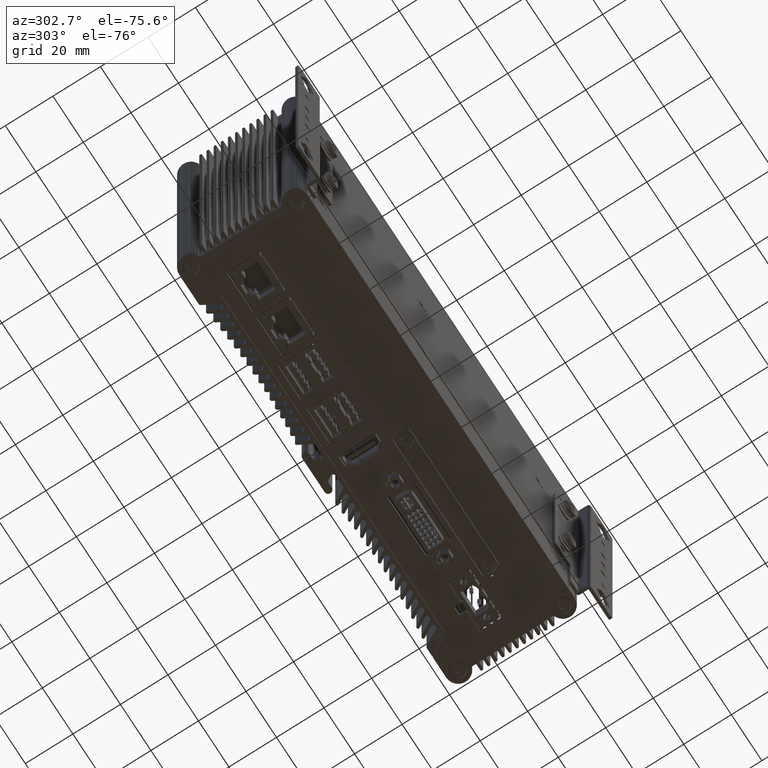
[diagram: clean part render]
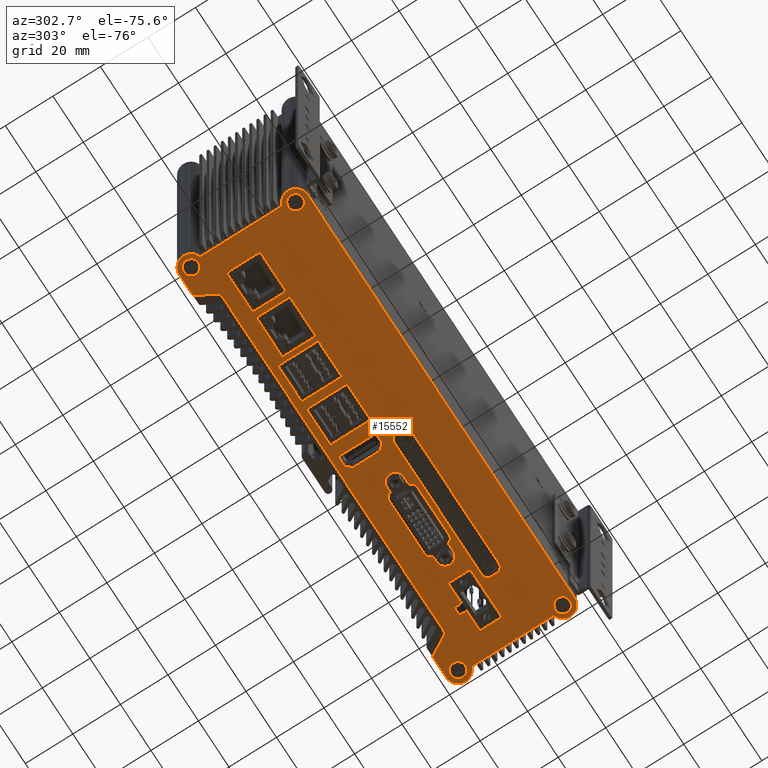
[diagram: same view with one face highlighted and labeled with its STEP entity id]
A machine part, auxiliary view. The second image highlights one B-rep face of the part: STEP entity #15552.
In plain terms, the highlighted planar face has unit normal (-0, 0, -1).
Its self-contained STEP definition (entity closure, byte-faithful):
#994 = CARTESIAN_POINT ( 'NONE',  ( -12.21617989435555500, 7.383629856380656200, -130.9999999999813600 ) ) ;
#1002 = LINE ( 'NONE', #994, #65418 ) ;
#1027 = DIRECTION ( 'NONE',  ( 0.9999999999999998900, 1.605435112628228500E-008, 0.0000000000000000000 ) ) ;
#1133 = LINE ( 'NONE', #1135, #65439 ) ;
#1135 = CARTESIAN_POINT ( 'NONE',  ( -33.56617961822070100, -9.816370486379757000, -130.9999999999813600 ) ) ;
#1137 = DIRECTION ( 'NONE',  ( -0.9999999999999998900, -1.605435112628228500E-008, 0.0000000000000000000 ) ) ;
#1176 = LINE ( 'NONE', #1179, #65448 ) ;
#1179 = CARTESIAN_POINT ( 'NONE',  ( 6.583820105644414300, 7.383630158202432600, -130.9999999999813600 ) ) ;
#1180 = DIRECTION ( 'NONE',  ( 0.9999999999999998900, 1.605435112628228500E-008, 0.0000000000000000000 ) ) ;
#1675 = LINE ( 'NONE', #1678, #65455 ) ;
#1678 = CARTESIAN_POINT ( 'NONE',  ( 6.583820378568389300, -9.616369841797610000, -130.9999999999813600 ) ) ;
#1680 = DIRECTION ( 'NONE',  ( -1.605435112628228500E-008, 0.9999999999999998900, 0.0000000000000000000 ) ) ;
#1687 = LINE ( 'NONE', #1690, #65457 ) ;
#1690 = CARTESIAN_POINT ( 'NONE',  ( 22.18382037856839200, -9.616369591349732500, -130.9999999999813600 ) ) ;
#1692 = DIRECTION ( 'NONE',  ( -0.9999999999999998900, -1.605435112628228500E-008, 0.0000000000000000000 ) ) ;
#7812 = VECTOR ( 'NONE', #42170, 1000.000000000000000 ) ;
#7837 = CIRCLE ( 'NONE', #7844, 2.500000000000002700 ) ;
#7844 = AXIS2_PLACEMENT_3D ( 'NONE', #42223, #42224, #42225 ) ;
#7856 = CIRCLE ( 'NONE', #7862, 2.500000000000002700 ) ;
#7862 = AXIS2_PLACEMENT_3D ( 'NONE', #42262, #42263, #42264 ) ;
#7877 = VECTOR ( 'NONE', #42301, 1000.000000000000000 ) ;
#7878 = VECTOR ( 'NONE', #42308, 1000.000000000000000 ) ;
#7882 = VECTOR ( 'NONE', #42313, 1000.000000000000000 ) ;
#7886 = CIRCLE ( 'NONE', #7890, 2.499999999999999100 ) ;
#7888 = VECTOR ( 'NONE', #42328, 1000.000000000000000 ) ;
#7890 = AXIS2_PLACEMENT_3D ( 'NONE', #42322, #42323, #42324 ) ;
#7892 = VECTOR ( 'NONE', #42334, 1000.000000000000000 ) ;
#7896 = VECTOR ( 'NONE', #42341, 1000.000000000000000 ) ;
#7901 = VECTOR ( 'NONE', #42346, 1000.000000000000000 ) ;
#7903 = VECTOR ( 'NONE', #42353, 1000.000000000000000 ) ;
#7905 = VECTOR ( 'NONE', #42359, 1000.000000000000000 ) ;
#7908 = VECTOR ( 'NONE', #42364, 1000.000000000000000 ) ;
#7912 = VECTOR ( 'NONE', #42375, 1000.000000000000000 ) ;
#7914 = VECTOR ( 'NONE', #42385, 1000.000000000000000 ) ;
#7915 = VECTOR ( 'NONE', #42380, 1000.000000000000000 ) ;
#7921 = CIRCLE ( 'NONE', #7924, 0.3000000000000017100 ) ;
#7923 = VECTOR ( 'NONE', #42404, 1000.000000000000100 ) ;
#7924 = AXIS2_PLACEMENT_3D ( 'NONE', #42390, #42391, #42392 ) ;
#7925 = VECTOR ( 'NONE', #42397, 1000.000000000000000 ) ;
#7929 = CIRCLE ( 'NONE', #7938, 0.2999999999999947700 ) ;
#7932 = CIRCLE ( 'NONE', #7934, 0.2999999999999947700 ) ;
#7934 = AXIS2_PLACEMENT_3D ( 'NONE', #42409, #42410, #42411 ) ;
#7936 = CIRCLE ( 'NONE', #7944, 0.3000000000000086500 ) ;
#7938 = AXIS2_PLACEMENT_3D ( 'NONE', #42415, #42416, #42417 ) ;
#7944 = AXIS2_PLACEMENT_3D ( 'NONE', #42423, #42424, #42425 ) ;
#7948 = CIRCLE ( 'NONE', #7950, 0.3000000000000676000 ) ;
#7950 = AXIS2_PLACEMENT_3D ( 'NONE', #42434, #42435, #42436 ) ;
#8830 = VERTEX_POINT ( 'NONE', #72541 ) ;
#8839 = VERTEX_POINT ( 'NONE', #72547 ) ;
#8843 = VERTEX_POINT ( 'NONE', #72551 ) ;
#8910 = VERTEX_POINT ( 'NONE', #72610 ) ;
#9047 = VERTEX_POINT ( 'NONE', #72729 ) ;
#9074 = VERTEX_POINT ( 'NONE', #72754 ) ;
#9162 = VERTEX_POINT ( 'NONE', #72810 ) ;
#9183 = VERTEX_POINT ( 'NONE', #72821 ) ;
#9195 = VERTEX_POINT ( 'NONE', #72829 ) ;
#9199 = VERTEX_POINT ( 'NONE', #72831 ) ;
#9218 = VERTEX_POINT ( 'NONE', #72841 ) ;
#9245 = VERTEX_POINT ( 'NONE', #72853 ) ;
#9249 = VERTEX_POINT ( 'NONE', #72855 ) ;
#9252 = VERTEX_POINT ( 'NONE', #72857 ) ;
#9298 = VERTEX_POINT ( 'NONE', #72883 ) ;
#9351 = VERTEX_POINT ( 'NONE', #72911 ) ;
#9423 = VERTEX_POINT ( 'NONE', #72952 ) ;
#9473 = VERTEX_POINT ( 'NONE', #72981 ) ;
#9519 = VERTEX_POINT ( 'NONE', #73004 ) ;
#9675 = VERTEX_POINT ( 'NONE', #73084 ) ;
#9735 = VERTEX_POINT ( 'NONE', #73112 ) ;
#9766 = VERTEX_POINT ( 'NONE', #73124 ) ;
#9832 = VERTEX_POINT ( 'NONE', #73157 ) ;
#9846 = VERTEX_POINT ( 'NONE', #73164 ) ;
#9887 = VERTEX_POINT ( 'NONE', #73185 ) ;
#9907 = VERTEX_POINT ( 'NONE', #73195 ) ;
#10031 = VERTEX_POINT ( 'NONE', #73256 ) ;
#10034 = VERTEX_POINT ( 'NONE', #73257 ) ;
#10039 = VERTEX_POINT ( 'NONE', #73260 ) ;
#10111 = VERTEX_POINT ( 'NONE', #73299 ) ;
#10113 = VERTEX_POINT ( 'NONE', #73300 ) ;
#10137 = VERTEX_POINT ( 'NONE', #73312 ) ;
#10206 = VERTEX_POINT ( 'NONE', #73342 ) ;
#10212 = VERTEX_POINT ( 'NONE', #73346 ) ;
#10348 = VERTEX_POINT ( 'NONE', #73412 ) ;
#10372 = VERTEX_POINT ( 'NONE', #73426 ) ;
#10379 = VERTEX_POINT ( 'NONE', #73430 ) ;
#10402 = VERTEX_POINT ( 'NONE', #73442 ) ;
#10580 = VERTEX_POINT ( 'NONE', #73508 ) ;
#10625 = VERTEX_POINT ( 'NONE', #73520 ) ;
#10631 = VERTEX_POINT ( 'NONE', #73518 ) ;
#10776 = VERTEX_POINT ( 'NONE', #33456 ) ;
#10879 = VERTEX_POINT ( 'NONE', #33476 ) ;
#10939 = VERTEX_POINT ( 'NONE', #33492 ) ;
#10965 = VERTEX_POINT ( 'NONE', #33499 ) ;
#11015 = VERTEX_POINT ( 'NONE', #33513 ) ;
#11046 = VERTEX_POINT ( 'NONE', #33522 ) ;
#11073 = VERTEX_POINT ( 'NONE', #33529 ) ;
#14451 = ORIENTED_EDGE ( 'NONE', *, *, #32662, .F. ) ;
#14458 = ORIENTED_EDGE ( 'NONE', *, *, #32617, .T. ) ;
#14461 = ORIENTED_EDGE ( 'NONE', *, *, #50144, .F. ) ;
#14479 = ORIENTED_EDGE ( 'NONE', *, *, #32636, .T. ) ;
#14505 = ORIENTED_EDGE ( 'NONE', *, *, #32673, .F. ) ;
#14511 = ORIENTED_EDGE ( 'NONE', *, *, #32620, .T. ) ;
#14520 = ORIENTED_EDGE ( 'NONE', *, *, #32604, .T. ) ;
#14524 = ORIENTED_EDGE ( 'NONE', *, *, #32625, .T. ) ;
#14533 = ORIENTED_EDGE ( 'NONE', *, *, #32713, .F. ) ;
#14559 = ORIENTED_EDGE ( 'NONE', *, *, #50140, .F. ) ;
#14566 = ORIENTED_EDGE ( 'NONE', *, *, #32706, .F. ) ;
#14572 = ORIENTED_EDGE ( 'NONE', *, *, #32719, .F. ) ;
#14579 = ORIENTED_EDGE ( 'NONE', *, *, #95932, .F. ) ;
#14583 = ORIENTED_EDGE ( 'NONE', *, *, #95895, .F. ) ;
#14590 = ORIENTED_EDGE ( 'NONE', *, *, #95913, .F. ) ;
#14601 = ORIENTED_EDGE ( 'NONE', *, *, #50091, .F. ) ;
#14604 = ORIENTED_EDGE ( 'NONE', *, *, #50434, .F. ) ;
#14610 = ORIENTED_EDGE ( 'NONE', *, *, #50118, .F. ) ;
#14613 = ORIENTED_EDGE ( 'NONE', *, *, #32639, .T. ) ;
#14616 = ORIENTED_EDGE ( 'NONE', *, *, #33002, .T. ) ;
#14618 = ORIENTED_EDGE ( 'NONE', *, *, #50444, .F. ) ;
#14621 = ORIENTED_EDGE ( 'NONE', *, *, #32568, .F. ) ;
#14695 = ORIENTED_EDGE ( 'NONE', *, *, #32624, .T. ) ;
#14702 = ORIENTED_EDGE ( 'NONE', *, *, #32610, .T. ) ;
#14707 = ORIENTED_EDGE ( 'NONE', *, *, #32606, .T. ) ;
#14716 = ORIENTED_EDGE ( 'NONE', *, *, #32996, .T. ) ;
#14718 = ORIENTED_EDGE ( 'NONE', *, *, #32648, .F. ) ;
#14720 = ORIENTED_EDGE ( 'NONE', *, *, #32652, .F. ) ;
#14734 = ORIENTED_EDGE ( 'NONE', *, *, #32630, .T. ) ;
#14741 = ORIENTED_EDGE ( 'NONE', *, *, #50150, .F. ) ;
#14768 = ORIENTED_EDGE ( 'NONE', *, *, #50154, .F. ) ;
#14790 = ORIENTED_EDGE ( 'NONE', *, *, #32595, .T. ) ;
#14805 = ORIENTED_EDGE ( 'NONE', *, *, #32633, .T. ) ;
#14858 = ORIENTED_EDGE ( 'NONE', *, *, #32696, .F. ) ;
#14880 = ORIENTED_EDGE ( 'NONE', *, *, #32689, .F. ) ;
#14916 = ORIENTED_EDGE ( 'NONE', *, *, #32994, .T. ) ;
#14917 = ORIENTED_EDGE ( 'NONE', *, *, #32725, .F. ) ;
#14925 = ORIENTED_EDGE ( 'NONE', *, *, #50125, .F. ) ;
#14936 = ORIENTED_EDGE ( 'NONE', *, *, #32642, .T. ) ;
#14939 = ORIENTED_EDGE ( 'NONE', *, *, #32998, .T. ) ;
#14982 = ORIENTED_EDGE ( 'NONE', *, *, #50157, .F. ) ;
#14988 = ORIENTED_EDGE ( 'NONE', *, *, #50148, .F. ) ;
#14993 = ORIENTED_EDGE ( 'NONE', *, *, #32670, .F. ) ;
#14994 = ORIENTED_EDGE ( 'NONE', *, *, #32586, .F. ) ;
#14995 = ORIENTED_EDGE ( 'NONE', *, *, #50161, .F. ) ;
#15000 = ORIENTED_EDGE ( 'NONE', *, *, #50146, .F. ) ;
#15001 = ORIENTED_EDGE ( 'NONE', *, *, #32686, .F. ) ;
#15002 = ORIENTED_EDGE ( 'NONE', *, *, #50152, .F. ) ;
#15005 = ORIENTED_EDGE ( 'NONE', *, *, #50137, .F. ) ;
#15006 = ORIENTED_EDGE ( 'NONE', *, *, #50133, .F. ) ;
#15007 = ORIENTED_EDGE ( 'NONE', *, *, #32716, .F. ) ;
#15008 = ORIENTED_EDGE ( 'NONE', *, *, #32676, .F. ) ;
#15009 = ORIENTED_EDGE ( 'NONE', *, *, #32722, .F. ) ;
#15016 = ORIENTED_EDGE ( 'NONE', *, *, #32682, .F. ) ;
#15017 = ORIENTED_EDGE ( 'NONE', *, *, #95934, .F. ) ;
#15020 = ORIENTED_EDGE ( 'NONE', *, *, #50120, .F. ) ;
#15022 = ORIENTED_EDGE ( 'NONE', *, *, #50135, .F. ) ;
#15025 = ORIENTED_EDGE ( 'NONE', *, *, #50129, .F. ) ;
#15027 = ORIENTED_EDGE ( 'NONE', *, *, #95920, .F. ) ;
#15029 = ORIENTED_EDGE ( 'NONE', *, *, #50123, .F. ) ;
#15030 = ORIENTED_EDGE ( 'NONE', *, *, #50131, .F. ) ;
#15032 = ORIENTED_EDGE ( 'NONE', *, *, #50450, .F. ) ;
#15034 = ORIENTED_EDGE ( 'NONE', *, *, #50116, .F. ) ;
#15035 = ORIENTED_EDGE ( 'NONE', *, *, #50449, .F. ) ;
#15037 = ORIENTED_EDGE ( 'NONE', *, *, #50446, .F. ) ;
#15038 = ORIENTED_EDGE ( 'NONE', *, *, #50072, .F. ) ;
#15039 = ORIENTED_EDGE ( 'NONE', *, *, #50103, .F. ) ;
#15040 = ORIENTED_EDGE ( 'NONE', *, *, #32562, .F. ) ;
#15042 = ORIENTED_EDGE ( 'NONE', *, *, #32558, .F. ) ;
#15043 = ORIENTED_EDGE ( 'NONE', *, *, #50448, .F. ) ;
#15044 = ORIENTED_EDGE ( 'NONE', *, *, #50433, .F. ) ;
#15047 = ORIENTED_EDGE ( 'NONE', *, *, #50432, .F. ) ;
#15048 = ORIENTED_EDGE ( 'NONE', *, *, #32578, .F. ) ;
#15051 = ORIENTED_EDGE ( 'NONE', *, *, #50127, .F. ) ;
#15055 = ORIENTED_EDGE ( 'NONE', *, *, #32658, .F. ) ;
#15056 = ORIENTED_EDGE ( 'NONE', *, *, #50142, .F. ) ;
#15071 = ORIENTED_EDGE ( 'NONE', *, *, #32629, .T. ) ;
#15088 = ORIENTED_EDGE ( 'NONE', *, *, #32644, .F. ) ;
#15107 = ORIENTED_EDGE ( 'NONE', *, *, #32710, .F. ) ;
#15108 = ORIENTED_EDGE ( 'NONE', *, *, #32666, .F. ) ;
#15109 = ORIENTED_EDGE ( 'NONE', *, *, #32681, .F. ) ;
#15117 = ORIENTED_EDGE ( 'NONE', *, *, #32692, .F. ) ;
#15118 = ORIENTED_EDGE ( 'NONE', *, *, #32703, .F. ) ;
#15135 = ORIENTED_EDGE ( 'NONE', *, *, #32700, .F. ) ;
#15171 = ORIENTED_EDGE ( 'NONE', *, *, #32655, .F. ) ;
#15552 = ADVANCED_FACE ( 'NONE', ( #57868, #57870, #57872, #57874, #57867, #57869, #57871, #57873, #57875, #57860, #57876, #57877, #57878 ), #57882, .T. ) ;
#21199 = VECTOR ( 'NONE', #95423, 1000.000000000000000 ) ;
#21200 = VECTOR ( 'NONE', #95420, 1000.000000000000000 ) ;
#21201 = CIRCLE ( 'NONE', #21204, 2.499999999999999100 ) ;
#21204 = AXIS2_PLACEMENT_3D ( 'NONE', #95426, #95427, #95428 ) ;
#21205 = CIRCLE ( 'NONE', #21228, 3.150000000000000400 ) ;
#21214 = CIRCLE ( 'NONE', #21217, 3.150000000000000400 ) ;
#21217 = AXIS2_PLACEMENT_3D ( 'NONE', #95453, #95454, #95455 ) ;
#21218 = CIRCLE ( 'NONE', #21221, 3.149999999999986600 ) ;
#21221 = AXIS2_PLACEMENT_3D ( 'NONE', #95459, #95460, #95461 ) ;
#21222 = CIRCLE ( 'NONE', #21225, 3.149999999999986600 ) ;
#21224 = VECTOR ( 'NONE', #95472, 1000.000000000000000 ) ;
#21225 = AXIS2_PLACEMENT_3D ( 'NONE', #95468, #95469, #95470 ) ;
#21228 = AXIS2_PLACEMENT_3D ( 'NONE', #95474, #95475, #95476 ) ;
#28693 = LINE ( 'NONE', #28696, #66874 ) ;
#28696 = CARTESIAN_POINT ( 'NONE',  ( 107.1838198958251100, 18.78363122987018100, -130.9999999999813600 ) ) ;
#28698 = DIRECTION ( 'NONE',  ( 0.9999999999999998900, 1.605435112628228500E-008, 0.0000000000000000000 ) ) ;
#28708 = LINE ( 'NONE', #28711, #66879 ) ;
#28711 = CARTESIAN_POINT ( 'NONE',  ( 117.3838200329712000, 9.013935349224560400, -130.9999999999813600 ) ) ;
#28713 = CARTESIAN_POINT ( 'NONE',  ( 115.8838196477010300, 13.78363130392962300, -130.9999999999813600 ) ) ;
#28715 = DIRECTION ( 'NONE',  ( 0.0000000000000000000, 0.0000000000000000000, -1.000000000000000000 ) ) ;
#28717 = DIRECTION ( 'NONE',  ( -0.9999999999999997800, -1.605435104050521000E-008, 0.0000000000000000000 ) ) ;
#28730 = DIRECTION ( 'NONE',  ( 1.605435112628228500E-008, -0.9999999999999998900, 0.0000000000000000000 ) ) ;
#28753 = LINE ( 'NONE', #28756, #66884 ) ;
#28756 = CARTESIAN_POINT ( 'NONE',  ( -44.06532700663179000, 10.28362880167331500, -130.9999999999813600 ) ) ;
#28758 = DIRECTION ( 'NONE',  ( 0.9999999999999998900, 1.605435701651001600E-008, 0.0000000000000000000 ) ) ;
#31801 = AXIS2_PLACEMENT_3D ( 'NONE', #57880, #57883, #57884 ) ;
#32558 = EDGE_CURVE ( 'NONE', #38203, #37855, #66337, .T. ) ;
#32562 = EDGE_CURVE ( 'NONE', #37094, #37977, #66338, .T. ) ;
#32568 = EDGE_CURVE ( 'NONE', #37199, #36741, #66347, .T. ) ;
#32578 = EDGE_CURVE ( 'NONE', #37042, #36617, #66353, .T. ) ;
#32586 = EDGE_CURVE ( 'NONE', #37431, #37394, #66359, .T. ) ;
#32595 = EDGE_CURVE ( 'NONE', #37362, #37358, #66365, .T. ) ;
#32604 = EDGE_CURVE ( 'NONE', #38228, #37346, #66371, .T. ) ;
#32606 = EDGE_CURVE ( 'NONE', #37348, #36693, #37611, .T. ) ;
#32610 = EDGE_CURVE ( 'NONE', #36693, #36690, #66369, .T. ) ;
#32617 = EDGE_CURVE ( 'NONE', #37556, #10402, #66381, .T. ) ;
#32620 = EDGE_CURVE ( 'NONE', #10402, #38228, #37748, .T. ) ;
#32624 = EDGE_CURVE ( 'NONE', #37346, #10212, #66392, .T. ) ;
#32625 = EDGE_CURVE ( 'NONE', #10212, #37362, #37769, .T. ) ;
#32629 = EDGE_CURVE ( 'NONE', #37358, #10113, #66399, .T. ) ;
#32630 = EDGE_CURVE ( 'NONE', #10113, #10137, #37822, .T. ) ;
#32633 = EDGE_CURVE ( 'NONE', #10137, #37710, #66404, .T. ) ;
#32636 = EDGE_CURVE ( 'NONE', #37710, #36619, #37917, .T. ) ;
#32639 = EDGE_CURVE ( 'NONE', #36619, #10372, #66412, .T. ) ;
#32642 = EDGE_CURVE ( 'NONE', #9473, #37348, #66415, .T. ) ;
#32644 = EDGE_CURVE ( 'NONE', #10939, #9766, #37994, .T. ) ;
#32648 = EDGE_CURVE ( 'NONE', #10034, #9675, #38037, .T. ) ;
#32652 = EDGE_CURVE ( 'NONE', #9675, #10348, #66429, .T. ) ;
#32655 = EDGE_CURVE ( 'NONE', #10348, #10965, #38091, .T. ) ;
#32658 = EDGE_CURVE ( 'NONE', #10580, #9735, #38140, .T. ) ;
#32662 = EDGE_CURVE ( 'NONE', #37762, #9195, #38178, .T. ) ;
#32666 = EDGE_CURVE ( 'NONE', #9199, #8839, #66445, .T. ) ;
#32670 = EDGE_CURVE ( 'NONE', #8839, #10776, #38260, .T. ) ;
#32673 = EDGE_CURVE ( 'NONE', #10776, #9351, #66454, .T. ) ;
#32676 = EDGE_CURVE ( 'NONE', #9351, #10379, #38305, .T. ) ;
#32681 = EDGE_CURVE ( 'NONE', #9887, #37431, #66465, .T. ) ;
#32682 = EDGE_CURVE ( 'NONE', #9846, #9519, #66466, .T. ) ;
#32686 = EDGE_CURVE ( 'NONE', #9519, #9907, #38429, .T. ) ;
#32689 = EDGE_CURVE ( 'NONE', #9907, #9183, #66476, .T. ) ;
#32692 = EDGE_CURVE ( 'NONE', #9423, #9162, #66480, .T. ) ;
#32696 = EDGE_CURVE ( 'NONE', #8843, #9047, #38532, .T. ) ;
#32700 = EDGE_CURVE ( 'NONE', #9047, #36637, #38572, .T. ) ;
#32703 = EDGE_CURVE ( 'NONE', #36637, #11015, #38602, .T. ) ;
#32706 = EDGE_CURVE ( 'NONE', #9298, #11046, #38631, .T. ) ;
#32710 = EDGE_CURVE ( 'NONE', #11046, #9832, #38671, .T. ) ;
#32713 = EDGE_CURVE ( 'NONE', #9832, #37505, #38699, .T. ) ;
#32716 = EDGE_CURVE ( 'NONE', #37505, #11073, #38728, .T. ) ;
#32719 = EDGE_CURVE ( 'NONE', #11073, #37635, #38756, .T. ) ;
#32722 = EDGE_CURVE ( 'NONE', #37635, #36874, #38787, .T. ) ;
#32725 = EDGE_CURVE ( 'NONE', #36874, #37998, #38816, .T. ) ;
#32994 = EDGE_CURVE ( 'NONE', #36690, #37696, #28693, .T. ) ;
#32996 = EDGE_CURVE ( 'NONE', #37696, #37701, #66876, .T. ) ;
#32998 = EDGE_CURVE ( 'NONE', #37701, #37556, #28708, .T. ) ;
#33002 = EDGE_CURVE ( 'NONE', #10372, #9473, #28753, .T. ) ;
#33456 = CARTESIAN_POINT ( 'NONE',  ( 51.49215433064362200, -10.26636953151806300, -130.9999999999813600 ) ) ;
#33476 = CARTESIAN_POINT ( 'NONE',  ( -50.66617961822070300, -9.816370760909160600, -130.9999999999813600 ) ) ;
#33492 = CARTESIAN_POINT ( 'NONE',  ( 33.48382014351226800, 5.024931767746938500, -130.9999999999813600 ) ) ;
#33499 = CARTESIAN_POINT ( 'NONE',  ( 27.58382035993840700, -8.455884698902391200, -130.9999999999813600 ) ) ;
#33513 = CARTESIAN_POINT ( 'NONE',  ( -14.06617984426586400, 4.263628662680090100, -130.9999999999813600 ) ) ;
#33522 = CARTESIAN_POINT ( 'NONE',  ( 87.21026938065561800, -9.746369072192205600, -130.9999999999813600 ) ) ;
#33529 = CARTESIAN_POINT ( 'NONE',  ( 95.87026918318703400, 2.553631066838479800, -130.9999999999813600 ) ) ;
#36617 = VERTEX_POINT ( 'NONE', #84363 ) ;
#36619 = VERTEX_POINT ( 'NONE', #84365 ) ;
#36637 = VERTEX_POINT ( 'NONE', #84383 ) ;
#36690 = VERTEX_POINT ( 'NONE', #84427 ) ;
#36693 = VERTEX_POINT ( 'NONE', #84429 ) ;
#36741 = VERTEX_POINT ( 'NONE', #84445 ) ;
#36874 = VERTEX_POINT ( 'NONE', #84485 ) ;
#36982 = VERTEX_POINT ( 'NONE', #84513 ) ;
#37042 = VERTEX_POINT ( 'NONE', #84529 ) ;
#37056 = VERTEX_POINT ( 'NONE', #84533 ) ;
#37094 = VERTEX_POINT ( 'NONE', #84531 ) ;
#37135 = VERTEX_POINT ( 'NONE', #84537 ) ;
#37199 = VERTEX_POINT ( 'NONE', #84605 ) ;
#37346 = VERTEX_POINT ( 'NONE', #84645 ) ;
#37348 = VERTEX_POINT ( 'NONE', #84635 ) ;
#37358 = VERTEX_POINT ( 'NONE', #84655 ) ;
#37362 = VERTEX_POINT ( 'NONE', #84657 ) ;
#37394 = VERTEX_POINT ( 'NONE', #84683 ) ;
#37431 = VERTEX_POINT ( 'NONE', #84711 ) ;
#37438 = CARTESIAN_POINT ( 'NONE',  ( 115.8838196477010300, 13.78363130392962300, -130.9999999999813600 ) ) ;
#37440 = DIRECTION ( 'NONE',  ( 0.0000000000000000000, 0.0000000000000000000, -1.000000000000000000 ) ) ;
#37443 = DIRECTION ( 'NONE',  ( -0.9999999999999998900, -1.605435086018121000E-008, 0.0000000000000000000 ) ) ;
#37461 = CARTESIAN_POINT ( 'NONE',  ( -59.11617929071177700, -30.21637117465820000, -130.9999999999813600 ) ) ;
#37463 = DIRECTION ( 'NONE',  ( 0.0000000000000000000, 0.0000000000000000000, -1.000000000000000000 ) ) ;
#37466 = DIRECTION ( 'NONE',  ( -0.9999999999999998900, -1.605435141088714500E-008, 0.0000000000000000000 ) ) ;
#37493 = CARTESIAN_POINT ( 'NONE',  ( -59.11617936785745500, 13.78362859293134900, -130.9999999999813600 ) ) ;
#37495 = DIRECTION ( 'NONE',  ( 0.0000000000000000000, 0.0000000000000000000, -1.000000000000000000 ) ) ;
#37497 = DIRECTION ( 'NONE',  ( -0.9999999999999998900, -1.605435086018127900E-008, 0.0000000000000000000 ) ) ;
#37505 = VERTEX_POINT ( 'NONE', #84731 ) ;
#37529 = CARTESIAN_POINT ( 'NONE',  ( 115.8838207092840800, -30.21636851997015700, -130.9999999999813600 ) ) ;
#37531 = DIRECTION ( 'NONE',  ( 0.0000000000000000000, 0.0000000000000000000, -1.000000000000000000 ) ) ;
#37533 = DIRECTION ( 'NONE',  ( -0.9999999999999998900, -1.605435141088707500E-008, 0.0000000000000000000 ) ) ;
#37556 = VERTEX_POINT ( 'NONE', #84740 ) ;
#37565 = CARTESIAN_POINT ( 'NONE',  ( 45.93382029990278400, -4.716369620753724200, -130.9999999999813600 ) ) ;
#37568 = DIRECTION ( 'NONE',  ( 0.0000000000000000000, 0.0000000000000000000, -1.000000000000000000 ) ) ;
#37571 = DIRECTION ( 'NONE',  ( -0.9999999999999998900, -1.605435109423552800E-008, 0.0000000000000000000 ) ) ;
#37599 = CARTESIAN_POINT ( 'NONE',  ( -59.11617936785745500, 13.78362859293134900, -130.9999999999813600 ) ) ;
#37602 = DIRECTION ( 'NONE',  ( 0.0000000000000000000, 0.0000000000000000000, -1.000000000000000000 ) ) ;
#37604 = DIRECTION ( 'NONE',  ( -0.9999999999999997800, -1.605435100989918300E-008, 0.0000000000000000000 ) ) ;
#37611 = LINE ( 'NONE', #37616, #66372 ) ;
#37616 = CARTESIAN_POINT ( 'NONE',  ( 102.5650178627138400, 11.28363115572920900, -130.9999999999813600 ) ) ;
#37635 = VERTEX_POINT ( 'NONE', #84789 ) ;
#37640 = CARTESIAN_POINT ( 'NONE',  ( -59.11617929071177700, -30.21637117465820000, -130.9999999999813600 ) ) ;
#37643 = DIRECTION ( 'NONE',  ( 0.0000000000000000000, 0.0000000000000000000, -1.000000000000000000 ) ) ;
#37646 = DIRECTION ( 'NONE',  ( -0.9999999999999997800, -1.605435090452725600E-008, 0.0000000000000000000 ) ) ;
#37650 = DIRECTION ( 'NONE',  ( 0.4999999860965558800, 0.8660254118115956500, 0.0000000000000000000 ) ) ;
#37670 = CARTESIAN_POINT ( 'NONE',  ( 107.1838199038444100, 18.28363122987023500, -130.9999999999813600 ) ) ;
#37673 = DIRECTION ( 'NONE',  ( 0.0000000000000000000, 0.0000000000000000000, -1.000000000000000000 ) ) ;
#37676 = DIRECTION ( 'NONE',  ( -0.9999999999999998900, -1.605435229201867400E-008, 0.0000000000000000000 ) ) ;
#37696 = VERTEX_POINT ( 'NONE', #84787 ) ;
#37701 = VERTEX_POINT ( 'NONE', #84800 ) ;
#37710 = VERTEX_POINT ( 'NONE', #84804 ) ;
#37724 = CARTESIAN_POINT ( 'NONE',  ( 115.8838207092840800, -30.21636851997015700, -130.9999999999813600 ) ) ;
#37727 = DIRECTION ( 'NONE',  ( 0.0000000000000000000, 0.0000000000000000000, -1.000000000000000000 ) ) ;
#37729 = DIRECTION ( 'NONE',  ( -0.9999999999999997800, -1.605435140164485400E-008, 0.0000000000000000000 ) ) ;
#37748 = LINE ( 'NONE', #37752, #66387 ) ;
#37752 = CARTESIAN_POINT ( 'NONE',  ( -59.11617921044001600, -35.21637117456841500, -130.9999999999813600 ) ) ;
#37753 = VERTEX_POINT ( 'NONE', #84835 ) ;
#37755 = DIRECTION ( 'NONE',  ( -0.9999999999999998900, -1.605435112628228500E-008, 0.0000000000000000000 ) ) ;
#37762 = VERTEX_POINT ( 'NONE', #84840 ) ;
#37764 = VERTEX_POINT ( 'NONE', #84841 ) ;
#37769 = LINE ( 'NONE', #37772, #66393 ) ;
#37772 = CARTESIAN_POINT ( 'NONE',  ( -60.61617936728610800, -25.44667519174993900, -130.9999999999813600 ) ) ;
#37789 = VERTEX_POINT ( 'NONE', #84856 ) ;
#37797 = CARTESIAN_POINT ( 'NONE',  ( -59.11617929071177700, -30.21637117465820000, -130.9999999999813600 ) ) ;
#37800 = DIRECTION ( 'NONE',  ( 0.0000000000000000000, 0.0000000000000000000, -1.000000000000000000 ) ) ;
#37802 = DIRECTION ( 'NONE',  ( -0.9999999999999997800, -1.605435090452725600E-008, 0.0000000000000000000 ) ) ;
#37804 = VERTEX_POINT ( 'NONE', #84866 ) ;
#37806 = DIRECTION ( 'NONE',  ( -1.605435112628228500E-008, 0.9999999999999998900, 0.0000000000000000000 ) ) ;
#37820 = CARTESIAN_POINT ( 'NONE',  ( -59.11617944821179500, 18.78362856002385700, -130.9999999999813600 ) ) ;
#37822 = LINE ( 'NONE', #37820, #66400 ) ;
#37848 = CARTESIAN_POINT ( 'NONE',  ( -59.11617936785745500, 13.78362859293134900, -130.9999999999813600 ) ) ;
#37851 = DIRECTION ( 'NONE',  ( 0.0000000000000000000, 0.0000000000000000000, -1.000000000000000000 ) ) ;
#37854 = DIRECTION ( 'NONE',  ( -0.9999999999999997800, -1.605435100989918300E-008, 0.0000000000000000000 ) ) ;
#37855 = VERTEX_POINT ( 'NONE', #84879 ) ;
#37858 = DIRECTION ( 'NONE',  ( 0.9999999999999998900, 1.605435591172671700E-008, 0.0000000000000000000 ) ) ;
#37891 = CARTESIAN_POINT ( 'NONE',  ( -50.41618009617329900, 18.28362869969801700, -130.9999999999813600 ) ) ;
#37893 = DIRECTION ( 'NONE',  ( 0.0000000000000000000, 0.0000000000000000000, -1.000000000000000000 ) ) ;
#37895 = DIRECTION ( 'NONE',  ( -0.9999999999999998900, -1.605435229205677100E-008, 0.0000000000000000000 ) ) ;
#37917 = LINE ( 'NONE', #37921, #66409 ) ;
#37921 = CARTESIAN_POINT ( 'NONE',  ( -49.98316739829514400, 18.53362870664809800, -130.9999999999813600 ) ) ;
#37924 = DIRECTION ( 'NONE',  ( 0.5000000139034799200, -0.8660253957572606700, -0.0000000000000000000 ) ) ;
#37952 = CARTESIAN_POINT ( 'NONE',  ( -44.06532703877177700, 12.28362880167408600, -130.9999999999813600 ) ) ;
#37954 = DIRECTION ( 'NONE',  ( 0.0000000000000000000, 0.0000000000000000000, 1.000000000000000000 ) ) ;
#37956 = DIRECTION ( 'NONE',  ( -1.000000000000000000, -1.605435142464863800E-008, 0.0000000000000000000 ) ) ;
#37977 = VERTEX_POINT ( 'NONE', #84943 ) ;
#37978 = CARTESIAN_POINT ( 'NONE',  ( 33.48382014351226800, 5.024931767746938500, -130.9999999999813600 ) ) ;
#37983 = CARTESIAN_POINT ( 'NONE',  ( 100.8329670390906600, 12.28363112792214900, -130.9999999999813600 ) ) ;
#37986 = DIRECTION ( 'NONE',  ( 0.0000000000000000000, 0.0000000000000000000, 1.000000000000000000 ) ) ;
#37988 = DIRECTION ( 'NONE',  ( -0.9999999999999998900, -1.605435142465559600E-008, 0.0000000000000000000 ) ) ;
#37994 = LINE ( 'NONE', #37978, #66417 ) ;
#37998 = VERTEX_POINT ( 'NONE', #84953 ) ;
#38008 = DIRECTION ( 'NONE',  ( 1.605435112628228500E-008, -0.9999999999999998900, 0.0000000000000000000 ) ) ;
#38037 = LINE ( 'NONE', #38043, #66425 ) ;
#38043 = CARTESIAN_POINT ( 'NONE',  ( 31.47839058879231500, -8.368016670733537100, -130.9999999999813600 ) ) ;
#38045 = DIRECTION ( 'NONE',  ( -0.7071067698344087900, -0.7071067925386861400, 0.0000000000000000000 ) ) ;
#38076 = CARTESIAN_POINT ( 'NONE',  ( 31.26625855584701300, -8.455884639783212400, -130.9999999999813600 ) ) ;
#38082 = CARTESIAN_POINT ( 'NONE',  ( 31.26625855103071300, -8.155884639783215200, -130.9999999999813600 ) ) ;
#38085 = DIRECTION ( 'NONE',  ( 0.0000000000000000000, 0.0000000000000000000, -1.000000000000000000 ) ) ;
#38088 = DIRECTION ( 'NONE',  ( -0.9999999999999997800, -1.605435113553424000E-008, 0.0000000000000000000 ) ) ;
#38091 = LINE ( 'NONE', #38076, #66433 ) ;
#38117 = DIRECTION ( 'NONE',  ( -0.9999999999999998900, -1.605435677924388200E-008, 0.0000000000000000000 ) ) ;
#38140 = LINE ( 'NONE', #38145, #66437 ) ;
#38145 = CARTESIAN_POINT ( 'NONE',  ( 27.58287148216838200, 7.243442102829969400, -130.9999999999813600 ) ) ;
#38148 = DIRECTION ( 'NONE',  ( 0.9999999999999998900, 1.605435677924388200E-008, 0.0000000000000000000 ) ) ;
#38178 = LINE ( 'NONE', #38183, #66441 ) ;
#38183 = CARTESIAN_POINT ( 'NONE',  ( 31.47744171384320200, 7.155574199710752500, -130.9999999999813600 ) ) ;
#38186 = DIRECTION ( 'NONE',  ( 0.7071067925386854700, -0.7071067698344094500, -0.0000000000000000000 ) ) ;
#38203 = VERTEX_POINT ( 'NONE', #84996 ) ;
#38224 = CARTESIAN_POINT ( 'NONE',  ( 72.82548641525596600, -8.266369189025264000, -130.9999999999813600 ) ) ;
#38227 = DIRECTION ( 'NONE',  ( 0.0000000000000000000, 0.0000000000000000000, -1.000000000000000000 ) ) ;
#38228 = VERTEX_POINT ( 'NONE', #84990 ) ;
#38230 = DIRECTION ( 'NONE',  ( -1.000000000000000000, -1.605435142465470900E-008, 0.0000000000000000000 ) ) ;
#38260 = LINE ( 'NONE', #38264, #66451 ) ;
#38264 = CARTESIAN_POINT ( 'NONE',  ( 51.49215433064362200, -10.26636953151806600, -130.9999999999813600 ) ) ;
#38267 = DIRECTION ( 'NONE',  ( -0.9999999999999998900, -1.605435112628228500E-008, 0.0000000000000000000 ) ) ;
#38292 = CARTESIAN_POINT ( 'NONE',  ( 49.46722404695883300, -8.266369564027071300, -130.9999999999813600 ) ) ;
#38298 = CARTESIAN_POINT ( 'NONE',  ( 51.49215429853502700, -8.266369531517954200, -130.9999999999813600 ) ) ;
#38301 = DIRECTION ( 'NONE',  ( 0.0000000000000000000, 0.0000000000000000000, -1.000000000000000000 ) ) ;
#38303 = DIRECTION ( 'NONE',  ( -1.000000000000000000, -1.605435142465387600E-008, 0.0000000000000000000 ) ) ;
#38305 = LINE ( 'NONE', #38292, #66458 ) ;
#38329 = DIRECTION ( 'NONE',  ( -0.1564344808972776800, 0.9876883380836281000, 0.0000000000000000000 ) ) ;
#38338 = VERTEX_POINT ( 'NONE', #85012 ) ;
#38382 = CARTESIAN_POINT ( 'NONE',  ( 45.93382029990278400, -4.716369620753724200, -130.9999999999813600 ) ) ;
#38384 = DIRECTION ( 'NONE',  ( 0.0000000000000000000, 0.0000000000000000000, -1.000000000000000000 ) ) ;
#38387 = DIRECTION ( 'NONE',  ( -0.9999999999999998900, -1.605435109423552800E-008, 0.0000000000000000000 ) ) ;
#38394 = CARTESIAN_POINT ( 'NONE',  ( 50.38346310227733900, -1.166369549322920900, -130.9999999999813600 ) ) ;
#38397 = DIRECTION ( 'NONE',  ( 0.0000000000000000000, 0.0000000000000000000, -1.000000000000000000 ) ) ;
#38400 = DIRECTION ( 'NONE',  ( -1.000000000000000000, -1.605435109939405800E-008, 0.0000000000000000000 ) ) ;
#38429 = LINE ( 'NONE', #38434, #66473 ) ;
#38434 = CARTESIAN_POINT ( 'NONE',  ( 50.38346307016863800, 0.8336304506770808600, -130.9999999999813600 ) ) ;
#38437 = DIRECTION ( 'NONE',  ( 0.9999999999999998900, 1.605435112628228500E-008, 0.0000000000000000000 ) ) ;
#38467 = CARTESIAN_POINT ( 'NONE',  ( 73.93417738354126800, -1.166369171231737700, -130.9999999999813600 ) ) ;
#38470 = DIRECTION ( 'NONE',  ( 0.0000000000000000000, 0.0000000000000000000, -1.000000000000000000 ) ) ;
#38472 = DIRECTION ( 'NONE',  ( -1.000000000000000000, -1.605435109939194000E-008, 0.0000000000000000000 ) ) ;
#38475 = VERTEX_POINT ( 'NONE', #85021 ) ;
#38500 = CARTESIAN_POINT ( 'NONE',  ( 78.38382029990032200, -4.716369099795329600, -130.9999999999813600 ) ) ;
#38502 = DIRECTION ( 'NONE',  ( 0.0000000000000000000, 0.0000000000000000000, -1.000000000000000000 ) ) ;
#38504 = DIRECTION ( 'NONE',  ( -0.9999999999999998900, -1.605435109423571600E-008, 0.0000000000000000000 ) ) ;
#38532 = LINE ( 'NONE', #38536, #66487 ) ;
#38536 = CARTESIAN_POINT ( 'NONE',  ( -14.06617961822062500, -9.816370173319912200, -130.9999999999813600 ) ) ;
#38539 = DIRECTION ( 'NONE',  ( -0.9999999999999998900, -1.605435112628228500E-008, 0.0000000000000000000 ) ) ;
#38572 = LINE ( 'NONE', #38577, #66491 ) ;
#38577 = CARTESIAN_POINT ( 'NONE',  ( -31.16617961822074200, -9.816370447849314100, -130.9999999999813600 ) ) ;
#38579 = DIRECTION ( 'NONE',  ( -1.605435112628228500E-008, 0.9999999999999998900, 0.0000000000000000000 ) ) ;
#38602 = LINE ( 'NONE', #38606, #66494 ) ;
#38606 = CARTESIAN_POINT ( 'NONE',  ( -31.16617984426597900, 4.263628388150683800, -130.9999999999813600 ) ) ;
#38609 = DIRECTION ( 'NONE',  ( 0.9999999999999998900, 1.605435112628228500E-008, 0.0000000000000000000 ) ) ;
#38631 = LINE ( 'NONE', #38637, #66497 ) ;
#38637 = CARTESIAN_POINT ( 'NONE',  ( 107.9302693806556200, -9.746368739546047900, -130.9999999999813600 ) ) ;
#38640 = DIRECTION ( 'NONE',  ( -0.9999999999999998900, -1.605435112628228100E-008, 0.0000000000000000000 ) ) ;
#38671 = LINE ( 'NONE', #38675, #66501 ) ;
#38675 = CARTESIAN_POINT ( 'NONE',  ( 87.21026938065561800, -9.746369072192205600, -130.9999999999813600 ) ) ;
#38678 = DIRECTION ( 'NONE',  ( -1.605435112628228500E-008, 0.9999999999999998900, 0.0000000000000000000 ) ) ;
#38699 = LINE ( 'NONE', #38703, #66504 ) ;
#38703 = CARTESIAN_POINT ( 'NONE',  ( 87.21026923135013900, -0.4463690721922056200, -130.9999999999813600 ) ) ;
#38705 = DIRECTION ( 'NONE',  ( 0.9999999999999998900, 1.605435112628228500E-008, 0.0000000000000000000 ) ) ;
#38728 = LINE ( 'NONE', #38732, #66507 ) ;
#38732 = CARTESIAN_POINT ( 'NONE',  ( 95.87026923135007900, -0.4463689331615228200, -130.9999999999813600 ) ) ;
#38735 = DIRECTION ( 'NONE',  ( -1.605435112628228500E-008, 0.9999999999999998900, 0.0000000000000000000 ) ) ;
#38756 = LINE ( 'NONE', #38761, #66510 ) ;
#38761 = CARTESIAN_POINT ( 'NONE',  ( 95.87026918318703400, 2.553631066838479800, -130.9999999999813600 ) ) ;
#38764 = DIRECTION ( 'NONE',  ( 0.9999999999999998900, 1.605435112628228500E-008, 0.0000000000000000000 ) ) ;
#38787 = LINE ( 'NONE', #38791, #66513 ) ;
#38791 = CARTESIAN_POINT ( 'NONE',  ( 99.27026918318709600, 2.553631121423274800, -130.9999999999813600 ) ) ;
#38794 = DIRECTION ( 'NONE',  ( 1.605435112628228500E-008, -0.9999999999999998900, 0.0000000000000000000 ) ) ;
#38816 = LINE ( 'NONE', #38821, #66516 ) ;
#38821 = CARTESIAN_POINT ( 'NONE',  ( 99.27026923135015600, -0.4463688785767278000, -130.9999999999813600 ) ) ;
#38824 = DIRECTION ( 'NONE',  ( 0.9999999999999998900, 1.605435112628228500E-008, 0.0000000000000000000 ) ) ;
#42167 = LINE ( 'NONE', #42169, #7812 ) ;
#42169 = CARTESIAN_POINT ( 'NONE',  ( 90.88322277825639600, -19.51636897022515200, -130.9999999999813600 ) ) ;
#42170 = DIRECTION ( 'NONE',  ( -0.9999999999999998900, -1.605435100539563200E-008, 0.0000000000000000000 ) ) ;
#42223 = CARTESIAN_POINT ( 'NONE',  ( 90.88322273812052300, -17.01636897022515200, -130.9999999999813600 ) ) ;
#42224 = DIRECTION ( 'NONE',  ( 0.0000000000000000000, 0.0000000000000000000, -1.000000000000000000 ) ) ;
#42225 = DIRECTION ( 'NONE',  ( -0.9999999999999997800, -1.605435090423766300E-008, 0.0000000000000000000 ) ) ;
#42262 = CARTESIAN_POINT ( 'NONE',  ( 90.88322269959006400, -14.61636885752522600, -130.9999999999813600 ) ) ;
#42263 = DIRECTION ( 'NONE',  ( 0.0000000000000000000, 0.0000000000000000000, -1.000000000000000000 ) ) ;
#42264 = DIRECTION ( 'NONE',  ( -0.9999999999999997800, -1.605435090423766300E-008, 0.0000000000000000000 ) ) ;
#42298 = LINE ( 'NONE', #42300, #7877 ) ;
#42299 = CARTESIAN_POINT ( 'NONE',  ( 33.48322265945420600, -12.11636977904497700, -130.9999999999813600 ) ) ;
#42300 = CARTESIAN_POINT ( 'NONE',  ( 93.38322269959006400, -14.61636881738934900, -130.9999999999813600 ) ) ;
#42301 = DIRECTION ( 'NONE',  ( 1.605435112628228500E-008, -0.9999999999999998900, 0.0000000000000000000 ) ) ;
#42302 = LINE ( 'NONE', #42303, #7882 ) ;
#42303 = CARTESIAN_POINT ( 'NONE',  ( 3.383820105644488800, 7.383630106828534600, -130.9999999999813600 ) ) ;
#42304 = LINE ( 'NONE', #42299, #7878 ) ;
#42308 = DIRECTION ( 'NONE',  ( 0.9999999999999998900, 1.605435100539563200E-008, -0.0000000000000000000 ) ) ;
#42313 = DIRECTION ( 'NONE',  ( 1.605435112628228500E-008, -0.9999999999999998900, 0.0000000000000000000 ) ) ;
#42320 = LINE ( 'NONE', #42326, #7888 ) ;
#42322 = CARTESIAN_POINT ( 'NONE',  ( 33.48322269959008700, -14.61636977904497100, -130.9999999999813600 ) ) ;
#42323 = DIRECTION ( 'NONE',  ( 0.0000000000000000000, 0.0000000000000000000, -1.000000000000000000 ) ) ;
#42324 = DIRECTION ( 'NONE',  ( -0.9999999999999997800, -1.605435090423768600E-008, 0.0000000000000000000 ) ) ;
#42326 = CARTESIAN_POINT ( 'NONE',  ( 3.383820378568463700, -9.616369893171505400, -130.9999999999813600 ) ) ;
#42327 = CARTESIAN_POINT ( 'NONE',  ( -33.56617984426593900, 4.263628349620241000, -130.9999999999813600 ) ) ;
#42328 = DIRECTION ( 'NONE',  ( -0.9999999999999998900, -1.605435112628228500E-008, 0.0000000000000000000 ) ) ;
#42329 = LINE ( 'NONE', #42327, #7892 ) ;
#42333 = CARTESIAN_POINT ( 'NONE',  ( 107.9302692313501500, -0.4463687395460519400, -130.9999999999813600 ) ) ;
#42334 = DIRECTION ( 'NONE',  ( 1.605435112628228500E-008, -0.9999999999999998900, 0.0000000000000000000 ) ) ;
#42336 = LINE ( 'NONE', #42333, #7896 ) ;
#42340 = CARTESIAN_POINT ( 'NONE',  ( 22.18382010564441800, 7.383630408650310200, -130.9999999999813600 ) ) ;
#42341 = DIRECTION ( 'NONE',  ( 1.605435112628228500E-008, -0.9999999999999998900, 0.0000000000000000000 ) ) ;
#42344 = LINE ( 'NONE', #42345, #7901 ) ;
#42345 = CARTESIAN_POINT ( 'NONE',  ( -12.21617962143159500, -9.616370143619382900, -130.9999999999813600 ) ) ;
#42346 = DIRECTION ( 'NONE',  ( -1.605435112628228500E-008, 0.9999999999999998900, 0.0000000000000000000 ) ) ;
#42350 = LINE ( 'NONE', #42352, #7903 ) ;
#42351 = LINE ( 'NONE', #42340, #7905 ) ;
#42352 = CARTESIAN_POINT ( 'NONE',  ( 75.93417738354155200, -1.166369139122838600, -130.9999999999813600 ) ) ;
#42353 = DIRECTION ( 'NONE',  ( 0.9999999999999998900, 1.605434835072472600E-008, -0.0000000000000000000 ) ) ;
#42358 = CARTESIAN_POINT ( 'NONE',  ( -14.06617984426586400, 4.263628662680090100, -130.9999999999813600 ) ) ;
#42359 = DIRECTION ( 'NONE',  ( 1.605435112628228500E-008, -0.9999999999999998900, 0.0000000000000000000 ) ) ;
#42362 = LINE ( 'NONE', #42363, #7908 ) ;
#42363 = CARTESIAN_POINT ( 'NONE',  ( 49.46722404695883300, -8.266369564027071300, -130.9999999999813600 ) ) ;
#42364 = DIRECTION ( 'NONE',  ( -0.9999999999999998900, -1.605435112628228500E-008, 0.0000000000000000000 ) ) ;
#42366 = LINE ( 'NONE', #42358, #7912 ) ;
#42369 = LINE ( 'NONE', #42384, #7914 ) ;
#42374 = LINE ( 'NONE', #42389, #7925 ) ;
#42375 = DIRECTION ( 'NONE',  ( 1.605435112628228500E-008, -0.9999999999999998900, 0.0000000000000000000 ) ) ;
#42378 = LINE ( 'NONE', #42379, #7915 ) ;
#42379 = CARTESIAN_POINT ( 'NONE',  ( 74.85041666683153500, -8.266369156521937700, -130.9999999999813600 ) ) ;
#42380 = DIRECTION ( 'NONE',  ( -0.9999999999999998900, -1.605442663825835400E-008, 0.0000000000000000000 ) ) ;
#42384 = CARTESIAN_POINT ( 'NONE',  ( 48.38346310227733900, -1.166369581426351900, -130.9999999999813600 ) ) ;
#42385 = DIRECTION ( 'NONE',  ( 0.9999999999999998900, 1.605435112628228500E-008, 0.0000000000000000000 ) ) ;
#42389 = CARTESIAN_POINT ( 'NONE',  ( 74.85041666683153500, -8.266369156521937700, -130.9999999999813600 ) ) ;
#42390 = CARTESIAN_POINT ( 'NONE',  ( 31.26530968289288700, 6.943442161949149300, -130.9999999999813600 ) ) ;
#42391 = DIRECTION ( 'NONE',  ( 0.0000000000000000000, 0.0000000000000000000, -1.000000000000000000 ) ) ;
#42392 = DIRECTION ( 'NONE',  ( -0.9999999999999997800, -1.605435113553405200E-008, 0.0000000000000000000 ) ) ;
#42393 = CARTESIAN_POINT ( 'NONE',  ( 27.28382035512282000, -8.155884703718495400, -130.9999999999813600 ) ) ;
#42397 = DIRECTION ( 'NONE',  ( -0.1564344491849723500, -0.9876883431063638900, 0.0000000000000000000 ) ) ;
#42400 = LINE ( 'NONE', #42393, #7923 ) ;
#42404 = DIRECTION ( 'NONE',  ( -1.605435664063505600E-008, 0.9999999999999998900, 0.0000000000000000000 ) ) ;
#42409 = CARTESIAN_POINT ( 'NONE',  ( 33.18382014351227100, 5.024931762930632000, -130.9999999999813600 ) ) ;
#42410 = DIRECTION ( 'NONE',  ( 0.0000000000000000000, 0.0000000000000000000, -1.000000000000000000 ) ) ;
#42411 = DIRECTION ( 'NONE',  ( 0.9999999999999997800, 1.605435113553442200E-008, 0.0000000000000000000 ) ) ;
#42415 = CARTESIAN_POINT ( 'NONE',  ( 33.18382032433651600, -6.238322804906996300, -130.9999999999813600 ) ) ;
#42416 = DIRECTION ( 'NONE',  ( 0.0000000000000000000, 0.0000000000000000000, -1.000000000000000000 ) ) ;
#42417 = DIRECTION ( 'NONE',  ( 0.9999999999999997800, 1.605435113553442200E-008, 0.0000000000000000000 ) ) ;
#42423 = CARTESIAN_POINT ( 'NONE',  ( 27.58381936074197300, 6.943443600290068600, -130.9999999999813600 ) ) ;
#42424 = DIRECTION ( 'NONE',  ( 0.0000000000000000000, 0.0000000000000000000, -1.000000000000000000 ) ) ;
#42425 = DIRECTION ( 'NONE',  ( -0.9999999999999997800, -1.605435113553368100E-008, 0.0000000000000000000 ) ) ;
#42434 = CARTESIAN_POINT ( 'NONE',  ( 27.58382035512288500, -8.155884698902315900, -130.9999999999813600 ) ) ;
#42435 = DIRECTION ( 'NONE',  ( 0.0000000000000000000, 0.0000000000000000000, -1.000000000000000000 ) ) ;
#42436 = DIRECTION ( 'NONE',  ( -0.9999999999999997800, -1.605435113553052500E-008, 0.0000000000000000000 ) ) ;
#47969 = EDGE_LOOP ( 'NONE', ( #15043, #15040 ) ) ;
#48202 = EDGE_LOOP ( 'NONE', ( #14559, #15118, #15135, #14858 ) ) ;
#48441 = EDGE_LOOP ( 'NONE', ( #15022, #15027, #14579, #15017 ) ) ;
#48463 = EDGE_LOOP ( 'NONE', ( #15032, #15042 ) ) ;
#48476 = EDGE_LOOP ( 'NONE', ( #14936, #14707, #14702, #14916, #14716, #14939, #14458, #14511, #14520, #14695, #14524, #14790, #15071, #14734, #14805, #14479, #14613, #14616 ) ) ;
#48521 = EDGE_LOOP ( 'NONE', ( #15025, #14917, #15009, #14572, #15007, #14533, #15107, #14566 ) ) ;
#48552 = EDGE_LOOP ( 'NONE', ( #15029, #15035, #14604, #15038, #14601, #15034, #15039, #14610 ) ) ;
#48585 = EDGE_LOOP ( 'NONE', ( #15002, #14451, #15000, #15055, #14982, #14741, #14995, #15171, #14720, #14718, #14768, #15088 ) ) ;
#48628 = EDGE_LOOP ( 'NONE', ( #14618, #15048 ) ) ;
#48739 = EDGE_LOOP ( 'NONE', ( #15020, #14583, #15030, #14925 ) ) ;
#48807 = EDGE_LOOP ( 'NONE', ( #15037, #14621 ) ) ;
#48808 = EDGE_LOOP ( 'NONE', ( #15051, #15044, #15047, #14590 ) ) ;
#49221 = EDGE_LOOP ( 'NONE', ( #15117, #15006, #14880, #15001, #15016, #14461, #14994, #15109, #15005, #15008, #14505, #14993, #15108, #14988, #15056 ) ) ;
#50072 = EDGE_CURVE ( 'NONE', #37789, #37764, #42167, .T. ) ;
#50091 = EDGE_CURVE ( 'NONE', #37804, #37789, #7837, .T. ) ;
#50103 = EDGE_CURVE ( 'NONE', #10206, #10111, #7856, .T. ) ;
#50116 = EDGE_CURVE ( 'NONE', #10111, #37804, #42298, .T. ) ;
#50118 = EDGE_CURVE ( 'NONE', #10039, #10206, #42304, .T. ) ;
#50120 = EDGE_CURVE ( 'NONE', #9245, #10625, #42302, .T. ) ;
#50123 = EDGE_CURVE ( 'NONE', #37753, #10039, #7886, .T. ) ;
#50125 = EDGE_CURVE ( 'NONE', #10625, #9074, #42320, .T. ) ;
#50127 = EDGE_CURVE ( 'NONE', #8910, #9218, #42329, .T. ) ;
#50129 = EDGE_CURVE ( 'NONE', #37998, #9298, #42336, .T. ) ;
#50131 = EDGE_CURVE ( 'NONE', #9074, #37056, #42344, .T. ) ;
#50133 = EDGE_CURVE ( 'NONE', #9183, #9423, #42350, .T. ) ;
#50135 = EDGE_CURVE ( 'NONE', #9252, #38475, #42351, .T. ) ;
#50137 = EDGE_CURVE ( 'NONE', #10379, #9887, #42362, .T. ) ;
#50140 = EDGE_CURVE ( 'NONE', #11015, #8843, #42366, .T. ) ;
#50142 = EDGE_CURVE ( 'NONE', #9162, #10031, #42378, .T. ) ;
#50144 = EDGE_CURVE ( 'NONE', #37394, #9846, #42369, .T. ) ;
#50146 = EDGE_CURVE ( 'NONE', #9735, #37762, #7921, .T. ) ;
#50148 = EDGE_CURVE ( 'NONE', #10031, #9199, #42374, .T. ) ;
#50150 = EDGE_CURVE ( 'NONE', #10631, #8830, #42400, .T. ) ;
#50152 = EDGE_CURVE ( 'NONE', #9195, #10939, #7932, .T. ) ;
#50154 = EDGE_CURVE ( 'NONE', #9766, #10034, #7929, .T. ) ;
#50157 = EDGE_CURVE ( 'NONE', #8830, #10580, #7936, .T. ) ;
#50161 = EDGE_CURVE ( 'NONE', #10965, #10631, #7948, .T. ) ;
#50432 = EDGE_CURVE ( 'NONE', #10879, #37135, #95418, .T. ) ;
#50433 = EDGE_CURVE ( 'NONE', #37135, #8910, #95412, .T. ) ;
#50434 = EDGE_CURVE ( 'NONE', #37764, #9249, #21201, .T. ) ;
#50444 = EDGE_CURVE ( 'NONE', #36617, #37042, #21214, .T. ) ;
#50446 = EDGE_CURVE ( 'NONE', #36741, #37199, #21218, .T. ) ;
#50448 = EDGE_CURVE ( 'NONE', #37977, #37094, #21222, .T. ) ;
#50449 = EDGE_CURVE ( 'NONE', #9249, #37753, #95462, .T. ) ;
#50450 = EDGE_CURVE ( 'NONE', #37855, #38203, #21205, .T. ) ;
#57860 = FACE_BOUND ( 'NONE', #48202, .T. ) ;
#57867 = FACE_BOUND ( 'NONE', #48628, .T. ) ;
#57868 = FACE_BOUND ( 'NONE', #48552, .T. ) ;
#57869 = FACE_BOUND ( 'NONE', #48808, .T. ) ;
#57870 = FACE_BOUND ( 'NONE', #48463, .T. ) ;
#57871 = FACE_BOUND ( 'NONE', #48739, .T. ) ;
#57872 = FACE_BOUND ( 'NONE', #47969, .T. ) ;
#57873 = FACE_BOUND ( 'NONE', #48441, .T. ) ;
#57874 = FACE_BOUND ( 'NONE', #48807, .T. ) ;
#57875 = FACE_BOUND ( 'NONE', #48521, .T. ) ;
#57876 = FACE_BOUND ( 'NONE', #49221, .T. ) ;
#57877 = FACE_BOUND ( 'NONE', #48585, .T. ) ;
#57878 = FACE_OUTER_BOUND ( 'NONE', #48476, .T. ) ;
#57880 = CARTESIAN_POINT ( 'NONE',  ( 100.8329670390906600, 12.28363112792214900, -130.9999999999813600 ) ) ;
#57882 = PLANE ( 'NONE',  #31801 ) ;
#57883 = DIRECTION ( 'NONE',  ( -0.0000000000000000000, 0.0000000000000000000, -1.000000000000000000 ) ) ;
#57884 = DIRECTION ( 'NONE',  ( -0.9999999999999998900, -1.605435112628228500E-008, 0.0000000000000000000 ) ) ;
#65418 = VECTOR ( 'NONE', #1027, 1000.000000000000000 ) ;
#65439 = VECTOR ( 'NONE', #1137, 1000.000000000000000 ) ;
#65448 = VECTOR ( 'NONE', #1180, 1000.000000000000000 ) ;
#65455 = VECTOR ( 'NONE', #1680, 1000.000000000000000 ) ;
#65457 = VECTOR ( 'NONE', #1692, 1000.000000000000000 ) ;
#66337 = CIRCLE ( 'NONE', #66340, 3.150000000000000400 ) ;
#66338 = CIRCLE ( 'NONE', #66344, 3.149999999999986600 ) ;
#66340 = AXIS2_PLACEMENT_3D ( 'NONE', #37438, #37440, #37443 ) ;
#66344 = AXIS2_PLACEMENT_3D ( 'NONE', #37461, #37463, #37466 ) ;
#66347 = CIRCLE ( 'NONE', #66349, 3.149999999999986600 ) ;
#66349 = AXIS2_PLACEMENT_3D ( 'NONE', #37493, #37495, #37497 ) ;
#66353 = CIRCLE ( 'NONE', #66355, 3.150000000000000400 ) ;
#66355 = AXIS2_PLACEMENT_3D ( 'NONE', #37529, #37531, #37533 ) ;
#66359 = CIRCLE ( 'NONE', #66361, 3.550357142857105700 ) ;
#66361 = AXIS2_PLACEMENT_3D ( 'NONE', #37565, #37568, #37571 ) ;
#66365 = CIRCLE ( 'NONE', #66367, 4.999999967092565000 ) ;
#66367 = AXIS2_PLACEMENT_3D ( 'NONE', #37599, #37602, #37604 ) ;
#66369 = CIRCLE ( 'NONE', #66377, 0.4999999999999311100 ) ;
#66371 = CIRCLE ( 'NONE', #66373, 4.999999999909813500 ) ;
#66372 = VECTOR ( 'NONE', #37650, 1000.000000000000100 ) ;
#66373 = AXIS2_PLACEMENT_3D ( 'NONE', #37640, #37643, #37646 ) ;
#66377 = AXIS2_PLACEMENT_3D ( 'NONE', #37670, #37673, #37676 ) ;
#66381 = CIRCLE ( 'NONE', #66384, 4.999999845086493100 ) ;
#66384 = AXIS2_PLACEMENT_3D ( 'NONE', #37724, #37727, #37729 ) ;
#66387 = VECTOR ( 'NONE', #37755, 1000.000000000000000 ) ;
#66392 = CIRCLE ( 'NONE', #66394, 4.999999999909813500 ) ;
#66393 = VECTOR ( 'NONE', #37806, 1000.000000000000000 ) ;
#66394 = AXIS2_PLACEMENT_3D ( 'NONE', #37797, #37800, #37802 ) ;
#66399 = CIRCLE ( 'NONE', #66401, 4.999999967092565000 ) ;
#66400 = VECTOR ( 'NONE', #37858, 1000.000000000000000 ) ;
#66401 = AXIS2_PLACEMENT_3D ( 'NONE', #37848, #37851, #37854 ) ;
#66404 = CIRCLE ( 'NONE', #66406, 0.4999999999987445600 ) ;
#66406 = AXIS2_PLACEMENT_3D ( 'NONE', #37891, #37893, #37895 ) ;
#66409 = VECTOR ( 'NONE', #37924, 1000.000000000000100 ) ;
#66412 = CIRCLE ( 'NONE', #66414, 2.000000000000758100 ) ;
#66414 = AXIS2_PLACEMENT_3D ( 'NONE', #37952, #37954, #37956 ) ;
#66415 = CIRCLE ( 'NONE', #66419, 1.999999999999891000 ) ;
#66417 = VECTOR ( 'NONE', #38008, 1000.000000000000000 ) ;
#66419 = AXIS2_PLACEMENT_3D ( 'NONE', #37983, #37986, #37988 ) ;
#66425 = VECTOR ( 'NONE', #38045, 999.9999999999998900 ) ;
#66429 = CIRCLE ( 'NONE', #66431, 0.2999999999999982100 ) ;
#66431 = AXIS2_PLACEMENT_3D ( 'NONE', #38082, #38085, #38088 ) ;
#66433 = VECTOR ( 'NONE', #38117, 1000.000000000000100 ) ;
#66437 = VECTOR ( 'NONE', #38148, 1000.000000000000100 ) ;
#66441 = VECTOR ( 'NONE', #38186, 1000.000000000000000 ) ;
#66445 = CIRCLE ( 'NONE', #66447, 2.000000000000001800 ) ;
#66447 = AXIS2_PLACEMENT_3D ( 'NONE', #38224, #38227, #38230 ) ;
#66451 = VECTOR ( 'NONE', #38267, 1000.000000000000000 ) ;
#66454 = CIRCLE ( 'NONE', #66456, 2.000000000000105700 ) ;
#66456 = AXIS2_PLACEMENT_3D ( 'NONE', #38298, #38301, #38303 ) ;
#66458 = VECTOR ( 'NONE', #38329, 1000.000000000000000 ) ;
#66465 = CIRCLE ( 'NONE', #66467, 3.550357142857105700 ) ;
#66466 = CIRCLE ( 'NONE', #66469, 2.000000000000001800 ) ;
#66467 = AXIS2_PLACEMENT_3D ( 'NONE', #38382, #38384, #38387 ) ;
#66469 = AXIS2_PLACEMENT_3D ( 'NONE', #38394, #38397, #38400 ) ;
#66473 = VECTOR ( 'NONE', #38437, 1000.000000000000000 ) ;
#66476 = CIRCLE ( 'NONE', #66478, 2.000000000000265600 ) ;
#66478 = AXIS2_PLACEMENT_3D ( 'NONE', #38467, #38470, #38472 ) ;
#66480 = CIRCLE ( 'NONE', #66483, 3.550357142857063900 ) ;
#66483 = AXIS2_PLACEMENT_3D ( 'NONE', #38500, #38502, #38504 ) ;
#66487 = VECTOR ( 'NONE', #38539, 1000.000000000000000 ) ;
#66491 = VECTOR ( 'NONE', #38579, 1000.000000000000000 ) ;
#66494 = VECTOR ( 'NONE', #38609, 1000.000000000000000 ) ;
#66497 = VECTOR ( 'NONE', #38640, 1000.000000000000100 ) ;
#66501 = VECTOR ( 'NONE', #38678, 1000.000000000000000 ) ;
#66504 = VECTOR ( 'NONE', #38705, 1000.000000000000000 ) ;
#66507 = VECTOR ( 'NONE', #38735, 1000.000000000000000 ) ;
#66510 = VECTOR ( 'NONE', #38764, 1000.000000000000000 ) ;
#66513 = VECTOR ( 'NONE', #38794, 1000.000000000000000 ) ;
#66516 = VECTOR ( 'NONE', #38824, 1000.000000000000000 ) ;
#66874 = VECTOR ( 'NONE', #28698, 1000.000000000000000 ) ;
#66876 = CIRCLE ( 'NONE', #66878, 5.000000065613727800 ) ;
#66878 = AXIS2_PLACEMENT_3D ( 'NONE', #28713, #28715, #28717 ) ;
#66879 = VECTOR ( 'NONE', #28730, 1000.000000000000000 ) ;
#66884 = VECTOR ( 'NONE', #28758, 1000.000000000000000 ) ;
#72541 = CARTESIAN_POINT ( 'NONE',  ( 27.28382011270202800, 6.944115296281423400, -130.9999999999813600 ) ) ;
#72547 = CARTESIAN_POINT ( 'NONE',  ( 72.82548644736425600, -10.26636918902526200, -130.9999999999813600 ) ) ;
#72551 = CARTESIAN_POINT ( 'NONE',  ( -14.06617961822062500, -9.816370173319912200, -130.9999999999813600 ) ) ;
#72610 = CARTESIAN_POINT ( 'NONE',  ( -33.56617984426593900, 4.263628349620241000, -130.9999999999813600 ) ) ;
#72729 = CARTESIAN_POINT ( 'NONE',  ( -31.16617961822074200, -9.816370447849314100, -130.9999999999813600 ) ) ;
#72754 = CARTESIAN_POINT ( 'NONE',  ( -12.21617962143159500, -9.616370143619382900, -130.9999999999813600 ) ) ;
#72810 = CARTESIAN_POINT ( 'NONE',  ( 78.43417749975714100, -8.266369098986709600, -130.9999999999813600 ) ) ;
#72821 = CARTESIAN_POINT ( 'NONE',  ( 75.93417738354155200, -1.166369139122838600, -130.9999999999813600 ) ) ;
#72829 = CARTESIAN_POINT ( 'NONE',  ( 33.39595217446259300, 5.237063800692241400, -130.9999999999813600 ) ) ;
#72831 = CARTESIAN_POINT ( 'NONE',  ( 74.80086310146910500, -8.579238087392516500, -130.9999999999813600 ) ) ;
#72841 = CARTESIAN_POINT ( 'NONE',  ( -33.56617961822070100, -9.816370486379757000, -130.9999999999813600 ) ) ;
#72853 = CARTESIAN_POINT ( 'NONE',  ( 3.383820105644488800, 7.383630106828534600, -130.9999999999813600 ) ) ;
#72855 = CARTESIAN_POINT ( 'NONE',  ( 30.98322273812052800, -17.01636993188078200, -130.9999999999813600 ) ) ;
#72857 = CARTESIAN_POINT ( 'NONE',  ( 22.18382010564441800, 7.383630408650310200, -130.9999999999813600 ) ) ;
#72883 = CARTESIAN_POINT ( 'NONE',  ( 107.9302693806556200, -9.746368739546047900, -130.9999999999813600 ) ) ;
#72911 = CARTESIAN_POINT ( 'NONE',  ( 49.51677762236757000, -8.579238493311891000, -130.9999999999813600 ) ) ;
#72952 = CARTESIAN_POINT ( 'NONE',  ( 78.43417738576432900, -1.166369098986971900, -130.9999999999813600 ) ) ;
#72981 = CARTESIAN_POINT ( 'NONE',  ( 100.8329670711681700, 10.28363112792225700, -130.9999999999813600 ) ) ;
#73004 = CARTESIAN_POINT ( 'NONE',  ( 50.38346307016863800, 0.8336304506770808600, -130.9999999999813600 ) ) ;
#73084 = CARTESIAN_POINT ( 'NONE',  ( 31.47839058879231500, -8.368016670733537100, -130.9999999999813600 ) ) ;
#73112 = CARTESIAN_POINT ( 'NONE',  ( 31.26530967807657300, 7.243442161949150900, -130.9999999999813600 ) ) ;
#73124 = CARTESIAN_POINT ( 'NONE',  ( 33.48382032433651300, -6.238322800090692500, -130.9999999999813600 ) ) ;
#73157 = CARTESIAN_POINT ( 'NONE',  ( 87.21026923135013900, -0.4463690721922056200, -130.9999999999813600 ) ) ;
#73164 = CARTESIAN_POINT ( 'NONE',  ( 48.38346310227733900, -1.166369581426351900, -130.9999999999813600 ) ) ;
#73185 = CARTESIAN_POINT ( 'NONE',  ( 45.88346321403111000, -8.266369621562029500, -130.9999999999813600 ) ) ;
#73195 = CARTESIAN_POINT ( 'NONE',  ( 73.93417735143233900, 0.8336308287685279000, -130.9999999999813600 ) ) ;
#73256 = CARTESIAN_POINT ( 'NONE',  ( 74.85041666683153500, -8.266369156521937700, -130.9999999999813600 ) ) ;
#73257 = CARTESIAN_POINT ( 'NONE',  ( 33.39595236209812200, -6.450454835857321700, -130.9999999999813600 ) ) ;
#73260 = CARTESIAN_POINT ( 'NONE',  ( 33.48322265945420600, -12.11636977904497700, -130.9999999999813600 ) ) ;
#73299 = CARTESIAN_POINT ( 'NONE',  ( 93.38322269959006400, -14.61636881738934900, -130.9999999999813600 ) ) ;
#73300 = CARTESIAN_POINT ( 'NONE',  ( -59.11617944821179500, 18.78362856002391400, -130.9999999999813600 ) ) ;
#73312 = CARTESIAN_POINT ( 'NONE',  ( -50.41618010421166900, 18.78362869969674200, -130.9999999999813600 ) ) ;
#73342 = CARTESIAN_POINT ( 'NONE',  ( 90.88322265945420500, -12.11636885752522700, -130.9999999999813600 ) ) ;
#73346 = CARTESIAN_POINT ( 'NONE',  ( -60.61617936728622200, -25.44667519174955600, -130.9999999999813600 ) ) ;
#73412 = CARTESIAN_POINT ( 'NONE',  ( 31.26625855584701300, -8.455884639783212400, -130.9999999999813600 ) ) ;
#73426 = CARTESIAN_POINT ( 'NONE',  ( -44.06532700663179000, 10.28362880167332700, -130.9999999999813600 ) ) ;
#73430 = CARTESIAN_POINT ( 'NONE',  ( 49.46722404695883300, -8.266369564027071300, -130.9999999999813600 ) ) ;
#73442 = CARTESIAN_POINT ( 'NONE',  ( 115.8838207895600000, -35.21636836505665300, -130.9999999999813600 ) ) ;
#73508 = CARTESIAN_POINT ( 'NONE',  ( 27.58287148216838200, 7.243442102830025300, -130.9999999999813600 ) ) ;
#73518 = CARTESIAN_POINT ( 'NONE',  ( 27.28382035512282000, -8.155884703718495400, -130.9999999999813600 ) ) ;
#73520 = CARTESIAN_POINT ( 'NONE',  ( 3.383820378568463700, -9.616369893171505400, -130.9999999999813600 ) ) ;
#84363 = CARTESIAN_POINT ( 'NONE',  ( 112.7338207092840700, -30.21636857054136600, -130.9999999999813600 ) ) ;
#84365 = CARTESIAN_POINT ( 'NONE',  ( -45.79737783028250700, 11.28362877385902900, -130.9999999999813600 ) ) ;
#84383 = CARTESIAN_POINT ( 'NONE',  ( -31.16617984426597900, 4.263628388150683800, -130.9999999999813600 ) ) ;
#84427 = CARTESIAN_POINT ( 'NONE',  ( 107.1838198958251100, 18.78363122987017400, -130.9999999999813600 ) ) ;
#84429 = CARTESIAN_POINT ( 'NONE',  ( 106.7508071979386400, 18.53363122291844100, -130.9999999999813600 ) ) ;
#84445 = CARTESIAN_POINT ( 'NONE',  ( -62.26617936785744700, 13.78362854236014500, -130.9999999999813600 ) ) ;
#84485 = CARTESIAN_POINT ( 'NONE',  ( 99.27026923135015600, -0.4463688785767278000, -130.9999999999813600 ) ) ;
#84513 = CARTESIAN_POINT ( 'NONE',  ( 6.583820105644414300, 7.383630158202432600, -130.9999999999813600 ) ) ;
#84529 = CARTESIAN_POINT ( 'NONE',  ( 119.0338207092840700, -30.21636846939895100, -130.9999999999813600 ) ) ;
#84531 = CARTESIAN_POINT ( 'NONE',  ( -55.96617929071179300, -30.21637112408699400, -130.9999999999813600 ) ) ;
#84533 = CARTESIAN_POINT ( 'NONE',  ( -12.21617989435555500, 7.383629856380656200, -130.9999999999813600 ) ) ;
#84537 = CARTESIAN_POINT ( 'NONE',  ( -50.66617984426594000, 4.263628075090834600, -130.9999999999813600 ) ) ;
#84605 = CARTESIAN_POINT ( 'NONE',  ( -55.96617936785747100, 13.78362864350255600, -130.9999999999813600 ) ) ;
#84635 = CARTESIAN_POINT ( 'NONE',  ( 102.5650178627138400, 11.28363115572920900, -130.9999999999813600 ) ) ;
#84645 = CARTESIAN_POINT ( 'NONE',  ( -64.11617929062158800, -30.21637125492995300, -130.9999999999813600 ) ) ;
#84655 = CARTESIAN_POINT ( 'NONE',  ( -64.11617933495001900, 13.78362851265959500, -130.9999999999813600 ) ) ;
#84657 = CARTESIAN_POINT ( 'NONE',  ( -60.61617992052878600, 9.013932794150060000, -130.9999999999813600 ) ) ;
#84683 = CARTESIAN_POINT ( 'NONE',  ( 45.88346310005169900, -1.166369621562225700, -130.9999999999813600 ) ) ;
#84711 = CARTESIAN_POINT ( 'NONE',  ( 42.38346315704567500, -4.716369677752404700, -130.9999999999813600 ) ) ;
#84731 = CARTESIAN_POINT ( 'NONE',  ( 95.87026923135007900, -0.4463689331615228200, -130.9999999999813600 ) ) ;
#84740 = CARTESIAN_POINT ( 'NONE',  ( 117.3838205862139000, -25.44667263657546700, -130.9999999999813600 ) ) ;
#84787 = CARTESIAN_POINT ( 'NONE',  ( 115.8838195674250600, 18.78363136954303100, -130.9999999999813600 ) ) ;
#84789 = CARTESIAN_POINT ( 'NONE',  ( 99.27026918318709600, 2.553631121423274800, -130.9999999999813600 ) ) ;
#84800 = CARTESIAN_POINT ( 'NONE',  ( 117.3838200329711000, 9.013935349224864200, -130.9999999999813600 ) ) ;
#84804 = CARTESIAN_POINT ( 'NONE',  ( -49.98316739829517300, 18.53362870664809800, -130.9999999999813600 ) ) ;
#84835 = CARTESIAN_POINT ( 'NONE',  ( 30.98322269959008700, -14.61636981918084800, -130.9999999999813600 ) ) ;
#84840 = CARTESIAN_POINT ( 'NONE',  ( 31.47744171384320200, 7.155574199710752500, -130.9999999999813600 ) ) ;
#84841 = CARTESIAN_POINT ( 'NONE',  ( 33.48322277825641200, -19.51636989174490500, -130.9999999999813600 ) ) ;
#84856 = CARTESIAN_POINT ( 'NONE',  ( 90.88322277825639600, -19.51636897022515200, -130.9999999999813600 ) ) ;
#84866 = CARTESIAN_POINT ( 'NONE',  ( 93.38322273812052300, -17.01636893008927500, -130.9999999999813600 ) ) ;
#84879 = CARTESIAN_POINT ( 'NONE',  ( 112.7338196477010300, 13.78363125335841700, -130.9999999999813600 ) ) ;
#84943 = CARTESIAN_POINT ( 'NONE',  ( -62.26617929071176100, -30.21637122522940500, -130.9999999999813600 ) ) ;
#84953 = CARTESIAN_POINT ( 'NONE',  ( 107.9302692313501500, -0.4463687395460519400, -130.9999999999813600 ) ) ;
#84990 = CARTESIAN_POINT ( 'NONE',  ( -59.11617921044001600, -35.21637117456841500, -130.9999999999813600 ) ) ;
#84996 = CARTESIAN_POINT ( 'NONE',  ( 119.0338196477010400, 13.78363135450082800, -130.9999999999813600 ) ) ;
#85012 = CARTESIAN_POINT ( 'NONE',  ( 6.583820378568389300, -9.616369841797610000, -130.9999999999813600 ) ) ;
#85021 = CARTESIAN_POINT ( 'NONE',  ( 22.18382037856839200, -9.616369591349732500, -130.9999999999813600 ) ) ;
#95412 = LINE ( 'NONE', #95421, #21199 ) ;
#95418 = LINE ( 'NONE', #95419, #21200 ) ;
#95419 = CARTESIAN_POINT ( 'NONE',  ( -50.66617961822070300, -9.816370760909160600, -130.9999999999813600 ) ) ;
#95420 = DIRECTION ( 'NONE',  ( -1.605435112628228500E-008, 0.9999999999999998900, 0.0000000000000000000 ) ) ;
#95421 = CARTESIAN_POINT ( 'NONE',  ( -50.66617984426594000, 4.263628075090834600, -130.9999999999813600 ) ) ;
#95423 = DIRECTION ( 'NONE',  ( 0.9999999999999998900, 1.605435112628228500E-008, 0.0000000000000000000 ) ) ;
#95426 = CARTESIAN_POINT ( 'NONE',  ( 33.48322273812053100, -17.01636989174490500, -130.9999999999813600 ) ) ;
#95427 = DIRECTION ( 'NONE',  ( 0.0000000000000000000, 0.0000000000000000000, -1.000000000000000000 ) ) ;
#95428 = DIRECTION ( 'NONE',  ( -0.9999999999999997800, -1.605435090423768600E-008, 0.0000000000000000000 ) ) ;
#95453 = CARTESIAN_POINT ( 'NONE',  ( 115.8838207092840800, -30.21636851997015700, -130.9999999999813600 ) ) ;
#95454 = DIRECTION ( 'NONE',  ( 0.0000000000000000000, 0.0000000000000000000, -1.000000000000000000 ) ) ;
#95455 = DIRECTION ( 'NONE',  ( -0.9999999999999998900, -1.605435141088707500E-008, 0.0000000000000000000 ) ) ;
#95459 = CARTESIAN_POINT ( 'NONE',  ( -59.11617936785745500, 13.78362859293134900, -130.9999999999813600 ) ) ;
#95460 = DIRECTION ( 'NONE',  ( 0.0000000000000000000, 0.0000000000000000000, -1.000000000000000000 ) ) ;
#95461 = DIRECTION ( 'NONE',  ( -0.9999999999999998900, -1.605435086018127900E-008, 0.0000000000000000000 ) ) ;
#95462 = LINE ( 'NONE', #95463, #21224 ) ;
#95463 = CARTESIAN_POINT ( 'NONE',  ( 30.98322273812052800, -17.01636993188078200, -130.9999999999813600 ) ) ;
#95468 = CARTESIAN_POINT ( 'NONE',  ( -59.11617929071177700, -30.21637117465820000, -130.9999999999813600 ) ) ;
#95469 = DIRECTION ( 'NONE',  ( 0.0000000000000000000, 0.0000000000000000000, -1.000000000000000000 ) ) ;
#95470 = DIRECTION ( 'NONE',  ( -0.9999999999999998900, -1.605435141088714500E-008, 0.0000000000000000000 ) ) ;
#95472 = DIRECTION ( 'NONE',  ( -1.605435112628228500E-008, 0.9999999999999998900, 0.0000000000000000000 ) ) ;
#95474 = CARTESIAN_POINT ( 'NONE',  ( 115.8838196477010300, 13.78363130392962300, -130.9999999999813600 ) ) ;
#95475 = DIRECTION ( 'NONE',  ( 0.0000000000000000000, 0.0000000000000000000, -1.000000000000000000 ) ) ;
#95476 = DIRECTION ( 'NONE',  ( -0.9999999999999998900, -1.605435086018121000E-008, 0.0000000000000000000 ) ) ;
#95895 = EDGE_CURVE ( 'NONE', #37056, #9245, #1002, .T. ) ;
#95913 = EDGE_CURVE ( 'NONE', #9218, #10879, #1133, .T. ) ;
#95920 = EDGE_CURVE ( 'NONE', #36982, #9252, #1176, .T. ) ;
#95932 = EDGE_CURVE ( 'NONE', #38338, #36982, #1675, .T. ) ;
#95934 = EDGE_CURVE ( 'NONE', #38475, #38338, #1687, .T. ) ;